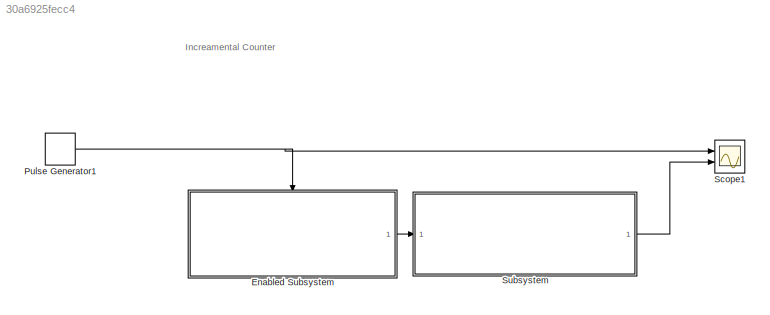
MODEL slx_30a6925fecc4
KIND model
CONFIG AbsTol = auto
CONFIG EnableMultiTasking = off
CONFIG FixedStep = auto
CONFIG MaxStep = auto
CONFIG MinStep = auto
CONFIG RelTol = 1e-3
CONFIG SampleTimeConstraint = Unconstrained
CONFIG SolverName = VariableStepAuto
CONFIG StartTime = 0.0
CONFIG StopTime = 100
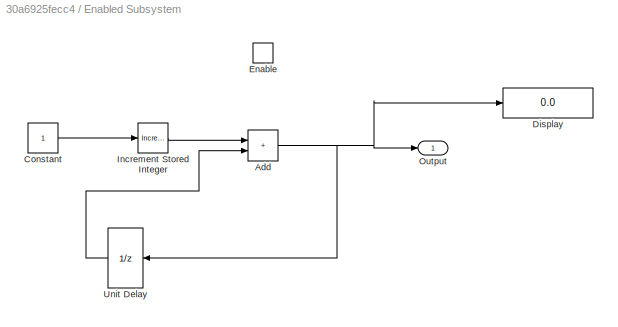
BLOCK [SubSystem] Enabled Subsystem
  Ports = [0, 1, 1]
  RequestExecContextInheritance = off
  TreatAsAtomicUnit = on
BLOCK [Sum] Enabled Subsystem/Add
  IconShape = rectangular
  Ports = [2, 1]
BLOCK [Constant] Enabled Subsystem/Constant
BLOCK [Display] Enabled Subsystem/Display
  Decimation = 1
  Ports = [1]
BLOCK [EnablePort] Enabled Subsystem/Enable
  Ports = []
  StatesWhenEnabling = reset
BLOCK [Reference] Enabled Subsystem/Increment Stored Integer  REF=simulink/Additional Math
& Discrete/Additional Math:
Increment - Decrement/Increment
Stored Integer
  Ports = [1, 1]
  SourceBlock = simulink/Additional Math\n& Discrete/Additional Math:\nIncrement - Decrement/Increment\nStored Integer
  SourceProductBaseCode = SL
  SourceType = Stored Integer Value Increment
BLOCK [Outport] Enabled Subsystem/Output
BLOCK [UnitDelay] Enabled Subsystem/Unit Delay
  HasFrameUpgradeWarning = on
  NameLocation = top
  SampleTime = -1
BLOCK [DiscretePulseGenerator] Pulse Generator1
  Period = 100
  Ports = [0, 1]
  PulseType = Time based
  PulseWidth = 50
BLOCK [Scope] Scope1
  Floating = off
  NumInputPorts = 2
  Ports = [2]
  ScopeSpecificationString = Simulink.scopes.TimeScopeBlockCfg('CurrentConfiguration', extmgr.ConfigurationSet(extmgr.Configuration('Core','General UI',true),extmgr.Configuration('Core','Source UI',true),extmgr.Configuration('Sources','WiredSimulink',true,'DataLoggingVariableName','ScopeData1'),extmgr.Configuration('Visuals','Time Domain',true,'SerializedDisplays',{struct('MinYLimReal','-0.125','MaxYLimReal','1.125','YLabelRe...<+2041ch>
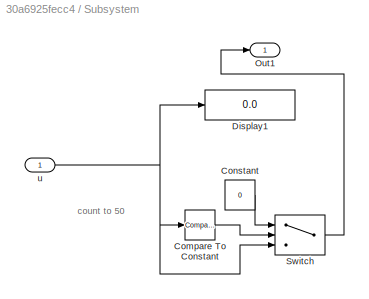
BLOCK [SubSystem] Subsystem
  Ports = [1, 1]
  RequestExecContextInheritance = off
BLOCK [Reference] Subsystem/Compare To Constant  REF=simulink/Logic and Bit
Operations/Compare
To Constant
  Ports = [1, 1]
  SourceBlock = simulink/Logic and Bit\nOperations/Compare\nTo Constant
  SourceProductBaseCode = SL
  SourceType = Compare To Constant
BLOCK [Constant] Subsystem/Constant
  Value = 0
BLOCK [Display] Subsystem/Display1
  Decimation = 1
  Ports = [1]
BLOCK [Outport] Subsystem/Out1
BLOCK [Switch] Subsystem/Switch
  Criteria = u2 > Threshold
  InputSameDT = off
  SaturateOnIntegerOverflow = off
BLOCK [Inport] Subsystem/u
ANNOTATION (root): Increamental Counter
ANNOTATION Subsystem: count to 50
NET Enabled Subsystem/Add:1 -> Enabled Subsystem/Display:1, Enabled Subsystem/Output:1, Enabled Subsystem/Unit Delay:1
LINE Enabled Subsystem/Constant:1 -> Enabled Subsystem/Increment Stored Integer:1
LINE Enabled Subsystem/Increment Stored Integer:1 -> Enabled Subsystem/Add:1
LINE Enabled Subsystem/Unit Delay:1 -> Enabled Subsystem/Add:2
LINE Enabled Subsystem:1 -> Subsystem:1
NET Pulse Generator1:1 -> Enabled Subsystem:enable, Scope1:1
LINE Subsystem/Compare To Constant:1 -> Subsystem/Switch:2
LINE Subsystem/Constant:1 -> Subsystem/Switch:1
LINE Subsystem/Switch:1 -> Subsystem/Out1:1
NET Subsystem/u:1 -> Subsystem/Compare To Constant:1, Subsystem/Display1:1, Subsystem/Switch:3
LINE Subsystem:1 -> Scope1:2
note: NET lines group one-source signal fan-out (src -> all destinations, sorted); 1:1 wires keep LINE
